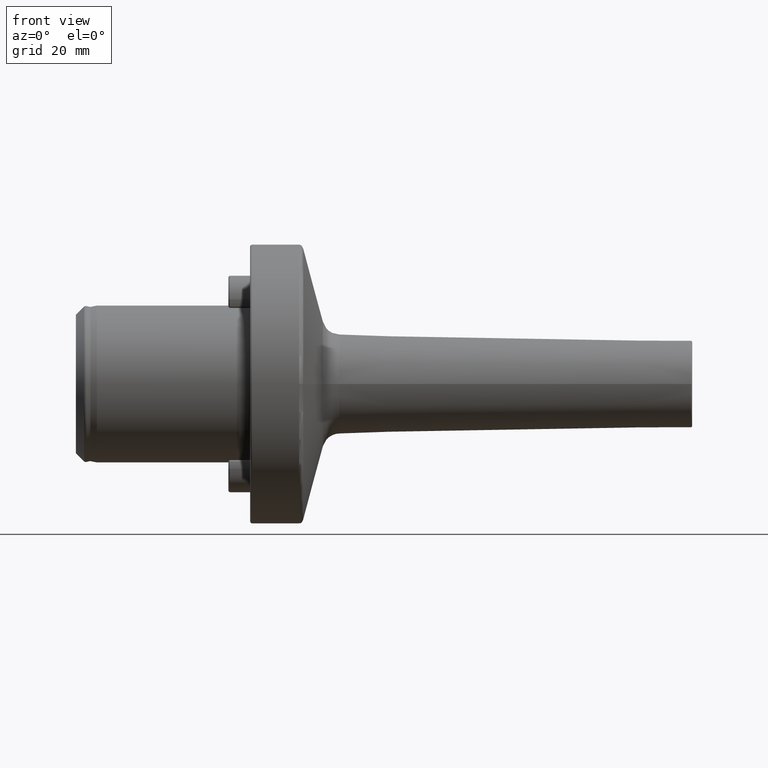
[diagram: clean part render]
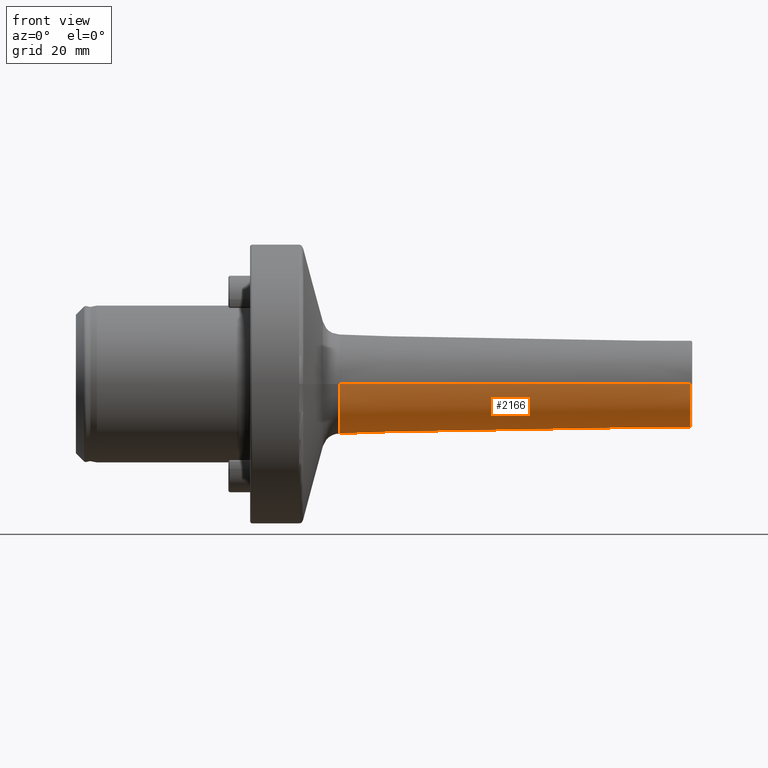
[diagram: same view with one face highlighted and labeled with its STEP entity id]
A machine part, front view. The second image highlights one B-rep face of the part: STEP entity #2166.
In plain terms, the highlighted conical surface has half-angle 1.023 deg.
Its self-contained STEP definition (entity closure, byte-faithful):
#442 = DIRECTION ( 'NONE',  ( -0.9998406260601852000, -0.01785280032871410300, 0.0000000000000000000 ) ) ;
#458 = CARTESIAN_POINT ( 'NONE',  ( 101.2053558400986500, -10.00526106183087400, 0.0000000000000000000 ) ) ;
#642 = VERTEX_POINT ( 'NONE', #668 ) ;
#668 = CARTESIAN_POINT ( 'NONE',  ( 98.61867984118559600, 10.05143347680166400, -1.310573655540432000E-007 ) ) ;
#691 = DIRECTION ( 'NONE',  ( -0.9998406260601852000, 0.01785280032871385300, 2.186337477837638700E-018 ) ) ;
#750 = VECTOR ( 'NONE', #442, 1000.000000000000000 ) ;
#784 = CARTESIAN_POINT ( 'NONE',  ( 101.2053558400986500, 10.00526106183089900, 1.225291093400484200E-015 ) ) ;
#808 = AXIS2_PLACEMENT_3D ( 'NONE', #3223, #3236, #3431 ) ;
#1094 = CARTESIAN_POINT ( 'NONE',  ( 101.2053558400986500, 10.00526106183089900, 1.225291093400484200E-015 ) ) ;
#1109 = DIRECTION ( 'NONE',  ( -0.9998406260601852000, 0.01785280032871385300, 2.186337477837638700E-018 ) ) ;
#1238 = B_SPLINE_CURVE_WITH_KNOTS ( 'NONE', 3,
 ( #5046, #5137, #4998, #4989, #4982, #4971, #4967, #4943 ),
 .UNSPECIFIED., .F., .F.,
 ( 4, 2, 2, 4 ),
 ( 0.8810614351586828500, 0.9109836369911009600, 0.9409058388235190800, 1.000750242488355400 ),
 .UNSPECIFIED. ) ;
#1494 = B_SPLINE_CURVE_WITH_KNOTS ( 'NONE', 3,
 ( #4899, #4878, #4886, #4839, #4740, #4758, #4749, #4734, #4713, #4535, #4588, #4608, #4566, #4542, #4523, #4444, #4307, #4266, #4189, #4146, #4213, #4167 ),
 .UNSPECIFIED., .F., .F.,
 ( 4, 2, 2, 2, 2, 2, 2, 2, 2, 2, 4 ),
 ( 0.0007502424883554086600, 0.04830900249711208400, 0.07208838250149042500, 0.09586776250586875900, 0.1434265225146253700, 0.1672059025190021600, 0.1909852825233789300, 0.2385440425321352900, 0.2861028025408916500, 0.3336615625496480200, 0.3812203225584043200 ),
 .UNSPECIFIED. ) ;
#1501 = EDGE_CURVE ( 'NONE', #4682, #642, #5113, .T. ) ;
#1565 = EDGE_CURVE ( 'NONE', #2248, #3342, #4994, .T. ) ;
#1603 = EDGE_CURVE ( 'NONE', #4200, #2274, #3936, .T. ) ;
#1678 = DIRECTION ( 'NONE',  ( 0.0000000000000000000, -1.000000000000000000, 0.0000000000000000000 ) ) ;
#1745 = DIRECTION ( 'NONE',  ( 1.000000000000000000, 1.262173199317614300E-016, -0.0000000000000000000 ) ) ;
#1752 = CARTESIAN_POINT ( 'NONE',  ( 20.50543894149620200, 2.787509643972291600E-015, 0.0000000000000000000 ) ) ;
#2114 = CARTESIAN_POINT ( 'NONE',  ( 20.50543894149620200, 11.44621021450898400, 1.401756470156616100E-015 ) ) ;
#2166 = ADVANCED_FACE ( 'NONE', ( #5078 ), #4696, .T. ) ;
#2248 = VERTEX_POINT ( 'NONE', #2825 ) ;
#2274 = VERTEX_POINT ( 'NONE', #2534 ) ;
#2394 = CARTESIAN_POINT ( 'NONE',  ( 101.2053558400986500, -10.00526106183087400, 0.0000000000000000000 ) ) ;
#2534 = CARTESIAN_POINT ( 'NONE',  ( 20.50543894149620200, -11.44621021450897800, 0.0000000000000000000 ) ) ;
#2645 = CIRCLE ( 'NONE', #4531, 10.00526106183088600 ) ;
#2687 = EDGE_CURVE ( 'NONE', #4200, #4682, #2645, .T. ) ;
#2697 = EDGE_CURVE ( 'NONE', #5097, #642, #1494, .T. ) ;
#2799 = EDGE_CURVE ( 'NONE', #2274, #3342, #4291, .T. ) ;
#2825 = CARTESIAN_POINT ( 'NONE',  ( 94.29759328194235500, 10.12859595293274700, 7.544004643351927200E-008 ) ) ;
#2972 = EDGE_CURVE ( 'NONE', #2248, #5097, #1238, .T. ) ;
#3223 = CARTESIAN_POINT ( 'NONE',  ( 101.2053558400986500, 1.297323687362975900E-014, 0.0000000000000000000 ) ) ;
#3236 = DIRECTION ( 'NONE',  ( -1.000000000000000000, -1.262173199317614300E-016, 0.0000000000000000000 ) ) ;
#3342 = VERTEX_POINT ( 'NONE', #2114 ) ;
#3431 = DIRECTION ( 'NONE',  ( 0.0000000000000000000, -1.000000000000000000, 0.0000000000000000000 ) ) ;
#3717 = ORIENTED_EDGE ( 'NONE', *, *, #1501, .F. ) ;
#3769 = ORIENTED_EDGE ( 'NONE', *, *, #2687, .F. ) ;
#3798 = AXIS2_PLACEMENT_3D ( 'NONE', #1752, #1745, #1678 ) ;
#3835 = ORIENTED_EDGE ( 'NONE', *, *, #1603, .T. ) ;
#3851 = CARTESIAN_POINT ( 'NONE',  ( 101.2053558400986500, 10.00526106183089900, 1.313523781778550200E-015 ) ) ;
#3893 = ORIENTED_EDGE ( 'NONE', *, *, #2799, .T. ) ;
#3900 = ORIENTED_EDGE ( 'NONE', *, *, #1565, .F. ) ;
#3936 = LINE ( 'NONE', #458, #750 ) ;
#3957 = ORIENTED_EDGE ( 'NONE', *, *, #2972, .T. ) ;
#4005 = ORIENTED_EDGE ( 'NONE', *, *, #2697, .T. ) ;
#4146 = CARTESIAN_POINT ( 'NONE',  ( 98.58655902353437700, 10.04431922850702800, -0.4486243945251225400 ) ) ;
#4167 = CARTESIAN_POINT ( 'NONE',  ( 98.61867984118559600, 10.05143347680166400, -1.310573655540432000E-007 ) ) ;
#4189 = CARTESIAN_POINT ( 'NONE',  ( 98.45878644132547200, 10.01812454482523600, -0.8790136691684655700 ) ) ;
#4200 = VERTEX_POINT ( 'NONE', #2394 ) ;
#4213 = CARTESIAN_POINT ( 'NONE',  ( 98.61876204972989500, 10.05144636365260200, -0.2248124774332911100 ) ) ;
#4266 = CARTESIAN_POINT ( 'NONE',  ( 98.36176228470591800, 9.998469437334513500, -1.090555174443846200 ) ) ;
#4291 = CIRCLE ( 'NONE', #3798, 11.44621021450898200 ) ;
#4307 = CARTESIAN_POINT ( 'NONE',  ( 98.12192552699902100, 9.955346651308044400, -1.461479322415971200 ) ) ;
#4444 = CARTESIAN_POINT ( 'NONE',  ( 97.97517339477703000, 9.931496454914411100, -1.627319800767139000 ) ) ;
#4523 = CARTESIAN_POINT ( 'NONE',  ( 97.64060281156652400, 9.887632057259404300, -1.907299403725793100 ) ) ;
#4531 = AXIS2_PLACEMENT_3D ( 'NONE', #5035, #5031, #5005 ) ;
#4535 = CARTESIAN_POINT ( 'NONE',  ( 96.72786641641253900, 9.831451597484889500, -2.248128324394740800 ) ) ;
#4542 = CARTESIAN_POINT ( 'NONE',  ( 97.45523389185891000, 9.868153109359928600, -2.019017883747527000 ) ) ;
#4566 = CARTESIAN_POINT ( 'NONE',  ( 97.15005507014393500, 9.846872554904591000, -2.144845312394329200 ) ) ;
#4588 = CARTESIAN_POINT ( 'NONE',  ( 96.83371329553331500, 9.833444614048573800, -2.231002172904124100 ) ) ;
#4608 = CARTESIAN_POINT ( 'NONE',  ( 97.04408459643981600, 9.841105846069336100, -2.179656223012814000 ) ) ;
#4682 = VERTEX_POINT ( 'NONE', #3851 ) ;
#4696 = CONICAL_SURFACE ( 'NONE', #808, 10.00526106183088600, 0.01785374881288808900 ) ;
#4713 = CARTESIAN_POINT ( 'NONE',  ( 96.40834209304802000, 9.831386897756409800, -2.273911827658206900 ) ) ;
#4734 = CARTESIAN_POINT ( 'NONE',  ( 96.19178713802593000, 9.839397537736585900, -2.256896078560470400 ) ) ;
#4738 = CARTESIAN_POINT ( 'NONE',  ( 94.87969263723397300, 9.999543031045952500, -1.545092244215075000 ) ) ;
#4740 = CARTESIAN_POINT ( 'NONE',  ( 95.57385631320448700, 9.892643017649778200, -2.065179393912601700 ) ) ;
#4749 = CARTESIAN_POINT ( 'NONE',  ( 95.87932771340206300, 9.861903253635350800, -2.181932264929526500 ) ) ;
#4758 = CARTESIAN_POINT ( 'NONE',  ( 95.77657217674607200, 9.871153293537544100, -2.148613293503277800 ) ) ;
#4839 = CARTESIAN_POINT ( 'NONE',  ( 95.47410818496761900, 9.904847425371068300, -2.015137721933409700 ) ) ;
#4878 = CARTESIAN_POINT ( 'NONE',  ( 95.02676363167967100, 9.971465673976419800, -1.709606620827939500 ) ) ;
#4886 = CARTESIAN_POINT ( 'NONE',  ( 95.19375127030805600, 9.943066514144439000, -1.847505778658122800 ) ) ;
#4893 = VECTOR ( 'NONE', #1109, 1000.000000000000000 ) ;
#4899 = CARTESIAN_POINT ( 'NONE',  ( 94.87969263723397300, 9.999543031045952500, -1.545092244215075000 ) ) ;
#4943 = CARTESIAN_POINT ( 'NONE',  ( 94.87969263723397300, 9.999543031045952500, -1.545092244215075000 ) ) ;
#4967 = CARTESIAN_POINT ( 'NONE',  ( 94.69463018311131500, 10.03487357368330100, -1.338078952594582900 ) ) ;
#4971 = CARTESIAN_POINT ( 'NONE',  ( 94.55179691858558000, 10.06764665117706200, -1.100737036074815000 ) ) ;
#4982 = CARTESIAN_POINT ( 'NONE',  ( 94.40041337900770200, 10.10353938357823400, -0.6985897128578696400 ) ) ;
#4989 = CARTESIAN_POINT ( 'NONE',  ( 94.36137791011403000, 10.11296527629603800, -0.5592918057460186700 ) ) ;
#4994 = LINE ( 'NONE', #784, #5108 ) ;
#4998 = CARTESIAN_POINT ( 'NONE',  ( 94.31021235241236400, 10.12542073894701200, -0.2814862008673476600 ) ) ;
#5005 = DIRECTION ( 'NONE',  ( 0.0000000000000000000, 1.000000000000000000, 0.0000000000000000000 ) ) ;
#5028 = EDGE_LOOP ( 'NONE', ( #3717, #3769, #3835, #3893, #3900, #3957, #4005 ) ) ;
#5031 = DIRECTION ( 'NONE',  ( 1.000000000000000000, 1.262173199317614300E-016, -0.0000000000000000000 ) ) ;
#5035 = CARTESIAN_POINT ( 'NONE',  ( 101.2053558400986500, 1.297323687362975900E-014, 0.0000000000000000000 ) ) ;
#5046 = CARTESIAN_POINT ( 'NONE',  ( 94.29759328194235500, 10.12859595293274700, 7.544004643351927200E-008 ) ) ;
#5078 = FACE_OUTER_BOUND ( 'NONE', #5028, .T. ) ;
#5097 = VERTEX_POINT ( 'NONE', #4738 ) ;
#5108 = VECTOR ( 'NONE', #691, 1000.000000000000000 ) ;
#5113 = LINE ( 'NONE', #1094, #4893 ) ;
#5137 = CARTESIAN_POINT ( 'NONE',  ( 94.29746702683067400, 10.12860588013880100, -0.1413077908208373000 ) ) ;